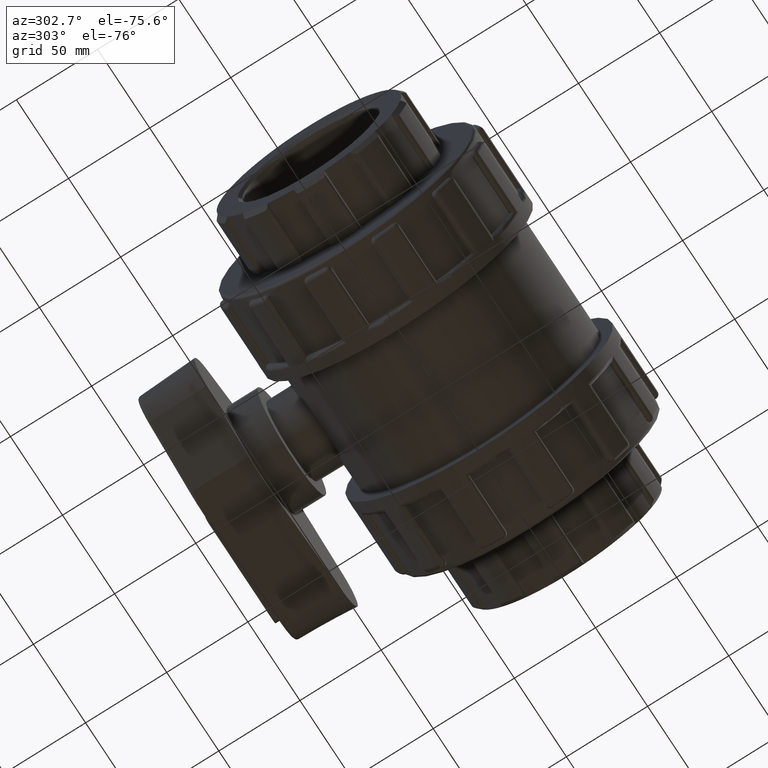
[diagram: clean part render]
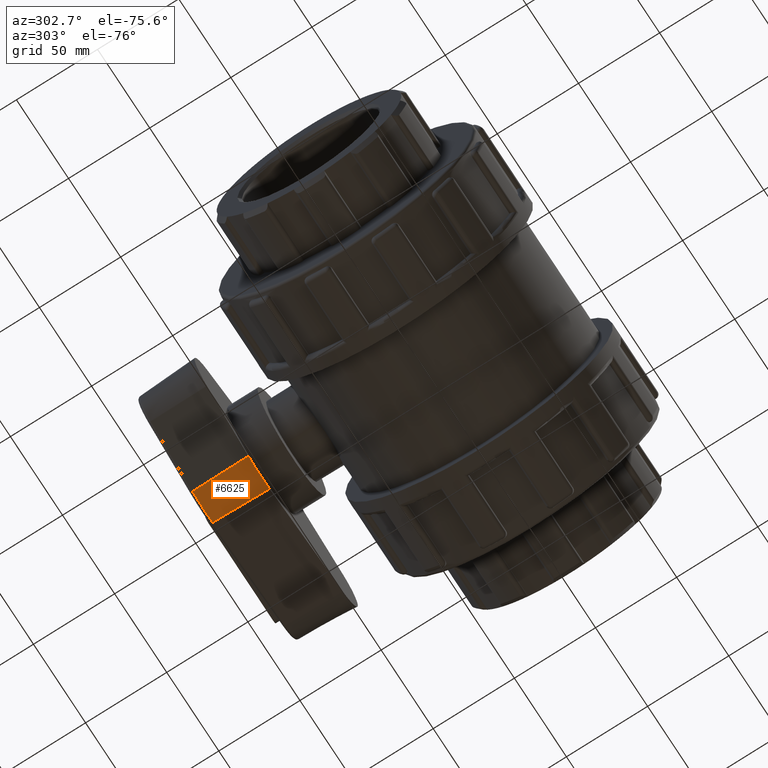
[diagram: same view with one face highlighted and labeled with its STEP entity id]
A machine part, auxiliary view. The second image highlights one B-rep face of the part: STEP entity #6625.
In plain terms, the highlighted conical surface has half-angle 3 deg.
Its self-contained STEP definition (entity closure, byte-faithful):
#340=CONICAL_SURFACE('',#7077,33.,3.);
#428=FACE_OUTER_BOUND('',#862,.T.);
#862=EDGE_LOOP('',(#4353,#4354,#4355,#4356));
#1322=LINE('',#10361,#1718);
#1323=LINE('',#10364,#1719);
#1718=VECTOR('',#8066,34.9382553330675);
#1719=VECTOR('',#8069,34.9382553330675);
#2114=CIRCLE('',#7065,33.0843569415148);
#2122=CIRCLE('',#7078,34.912883943831);
#2631=VERTEX_POINT('',#10327);
#2633=VERTEX_POINT('',#10333);
#2641=VERTEX_POINT('',#10360);
#2642=VERTEX_POINT('',#10362);
#3281=EDGE_CURVE('',#2631,#2633,#2114,.T.);
#3293=EDGE_CURVE('',#2631,#2641,#1322,.T.);
#3294=EDGE_CURVE('',#2641,#2642,#2122,.T.);
#3295=EDGE_CURVE('',#2633,#2642,#1323,.T.);
#4353=ORIENTED_EDGE('',*,*,#3281,.F.);
#4354=ORIENTED_EDGE('',*,*,#3293,.T.);
#4355=ORIENTED_EDGE('',*,*,#3294,.T.);
#4356=ORIENTED_EDGE('',*,*,#3295,.F.);
#6625=ADVANCED_FACE('',(#428),#340,.T.);
#7065=AXIS2_PLACEMENT_3D('',#10337,#8036,#8037);
#7077=AXIS2_PLACEMENT_3D('',#10359,#8064,#8065);
#7078=AXIS2_PLACEMENT_3D('',#10363,#8067,#8068);
#8036=DIRECTION('center_axis',(-5.3554266536492E-16,1.,3.83978667765347E-17));
#8037=DIRECTION('ref_axis',(-0.0715154017509521,0.,-0.997439495564718));
#8064=DIRECTION('center_axis',(3.04170691678125E-16,-1.,0.));
#8065=DIRECTION('ref_axis',(1.,3.01418015735337E-16,0.));
#8066=DIRECTION('',(0.0116537554387125,-0.998629534754574,-0.0510219785978358));
#8067=DIRECTION('center_axis',(-3.01418015735337E-16,1.,0.));
#8068=DIRECTION('ref_axis',(1.,3.01418015735337E-16,0.));
#8069=DIRECTION('',(-0.0188135790415809,-0.998629534754574,-0.0488375015690762));
#10327=CARTESIAN_POINT('',(7.3669620719972,144.390373668398,-32.2537213986745));
#10333=CARTESIAN_POINT('',(-11.8930694887798,144.390373668398,-30.8727966398999));
#10337=CARTESIAN_POINT('Origin',(-1.77635683940025E-14,144.390373668398,
0.));
#10359=CARTESIAN_POINT('Origin',(-1.66533453693773E-14,146.,0.));
#10360=CARTESIAN_POINT('',(7.77412395510407,109.5,-34.036340314524));
#10361=CARTESIAN_POINT('',(7.34817813765181,146.,-32.1714823727061));
#10362=CARTESIAN_POINT('',(-12.5503831170634,109.5,-32.5790937395493));
#10363=CARTESIAN_POINT('Origin',(-5.55111512312578E-15,109.5,0.));
#10364=CARTESIAN_POINT('',(-11.8627450980392,146.,-30.7940786311094));